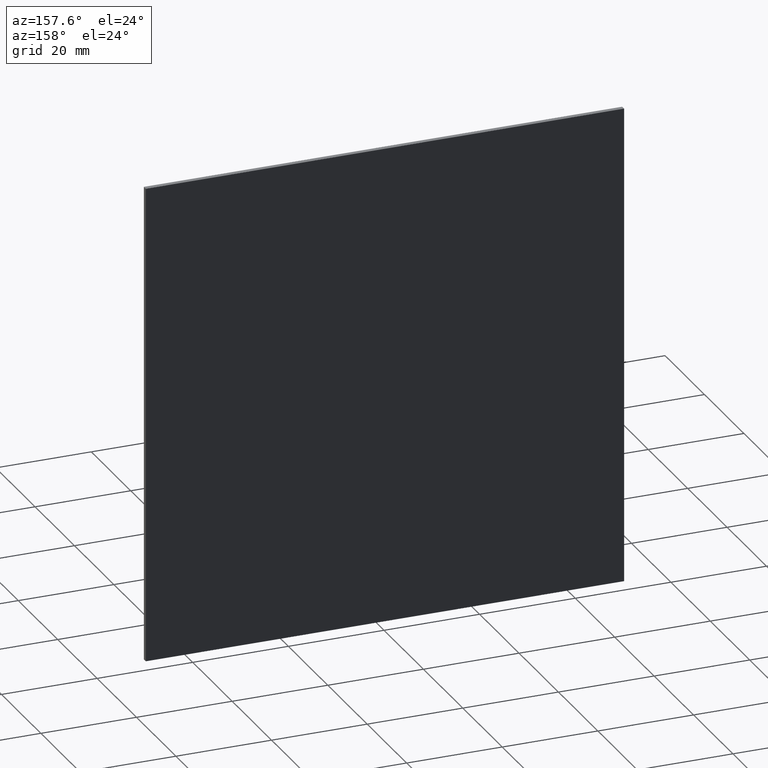
[diagram: clean part render]
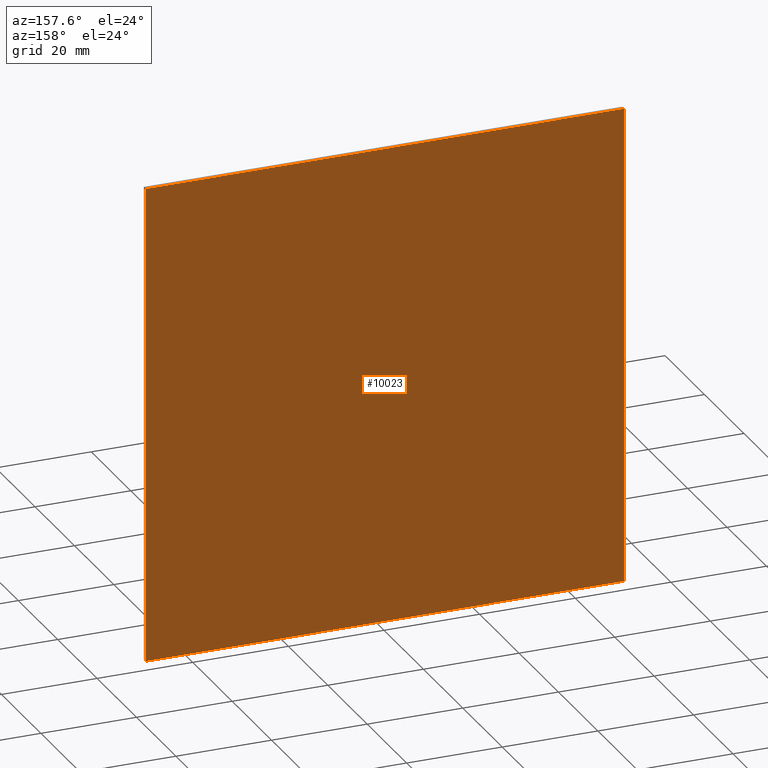
[diagram: same view with one face highlighted and labeled with its STEP entity id]
A machine part, auxiliary view. The second image highlights one B-rep face of the part: STEP entity #10023.
In plain terms, the highlighted planar face has unit normal (0, 1, 0).
Its self-contained STEP definition (entity closure, byte-faithful):
#366 = DIRECTION ( 'NONE',  ( -1.000000000000000000, -0.000000000000000000, -0.000000000000000000 ) ) ;
#601 = LINE ( 'NONE', #8152, #8278 ) ;
#1328 = DIRECTION ( 'NONE',  ( 1.387778780781445676E-16, 0.000000000000000000, 1.000000000000000000 ) ) ;
#2288 = VECTOR ( 'NONE', #15470, 1000.000000000000000 ) ;
#2294 = VERTEX_POINT ( 'NONE', #3045 ) ;
#2326 = CARTESIAN_POINT ( 'NONE',  ( 0.000000000000000000, 0.5000000000000000000, 0.000000000000000000 ) ) ;
#3045 = CARTESIAN_POINT ( 'NONE',  ( 49.99999999999999289, 0.5000000000000000000, 49.99999999999999289 ) ) ;
#4013 = DIRECTION ( 'NONE',  ( 1.000000000000000000, 0.000000000000000000, 0.000000000000000000 ) ) ;
#4441 = CARTESIAN_POINT ( 'NONE',  ( -50.00000000000002132, 0.5000000000000000000, -50.00000000000000711 ) ) ;
#4466 = EDGE_CURVE ( 'NONE', #9337, #8537, #12497, .T. ) ;
#4554 = FACE_OUTER_BOUND ( 'NONE', #5266, .T. ) ;
#4880 = PLANE ( 'NONE',  #15788 ) ;
#5266 = EDGE_LOOP ( 'NONE', ( #15871, #11520, #8130, #8902 ) ) ;
#8130 = ORIENTED_EDGE ( 'NONE', *, *, #4466, .T. ) ;
#8152 = CARTESIAN_POINT ( 'NONE',  ( -50.00000000000000711, 0.5000000000000000000, 49.99999999999999289 ) ) ;
#8278 = VECTOR ( 'NONE', #4013, 1000.000000000000000 ) ;
#8537 = VERTEX_POINT ( 'NONE', #9056 ) ;
#8902 = ORIENTED_EDGE ( 'NONE', *, *, #16458, .T. ) ;
#9056 = CARTESIAN_POINT ( 'NONE',  ( -50.00000000000000711, 0.5000000000000000000, 49.99999999999999289 ) ) ;
#9166 = CARTESIAN_POINT ( 'NONE',  ( -50.00000000000002132, 0.5000000000000000000, -50.00000000000000711 ) ) ;
#9266 = VERTEX_POINT ( 'NONE', #10355 ) ;
#9337 = VERTEX_POINT ( 'NONE', #16972 ) ;
#9580 = EDGE_CURVE ( 'NONE', #9266, #9337, #12209, .T. ) ;
#10023 = ADVANCED_FACE ( 'NONE', ( #4554 ), #4880, .T. ) ;
#10355 = CARTESIAN_POINT ( 'NONE',  ( 49.99999999999997158, 0.5000000000000000000, -50.00000000000000711 ) ) ;
#11520 = ORIENTED_EDGE ( 'NONE', *, *, #9580, .T. ) ;
#11645 = DIRECTION ( 'NONE',  ( 0.000000000000000000, -0.000000000000000000, 1.000000000000000000 ) ) ;
#11866 = VECTOR ( 'NONE', #1328, 1000.000000000000000 ) ;
#12209 = LINE ( 'NONE', #4441, #14910 ) ;
#12497 = LINE ( 'NONE', #9166, #11866 ) ;
#12808 = CARTESIAN_POINT ( 'NONE',  ( 49.99999999999997158, 0.5000000000000000000, -50.00000000000000711 ) ) ;
#12856 = LINE ( 'NONE', #12808, #2288 ) ;
#12979 = DIRECTION ( 'NONE',  ( 0.000000000000000000, 1.000000000000000000, 0.000000000000000000 ) ) ;
#14382 = EDGE_CURVE ( 'NONE', #2294, #9266, #12856, .T. ) ;
#14910 = VECTOR ( 'NONE', #366, 1000.000000000000000 ) ;
#15470 = DIRECTION ( 'NONE',  ( -2.081668171172168513E-16, -0.000000000000000000, -1.000000000000000000 ) ) ;
#15788 = AXIS2_PLACEMENT_3D ( 'NONE', #2326, #12979, #11645 ) ;
#15871 = ORIENTED_EDGE ( 'NONE', *, *, #14382, .T. ) ;
#16458 = EDGE_CURVE ( 'NONE', #8537, #2294, #601, .T. ) ;
#16972 = CARTESIAN_POINT ( 'NONE',  ( -50.00000000000002132, 0.5000000000000000000, -50.00000000000000711 ) ) ;